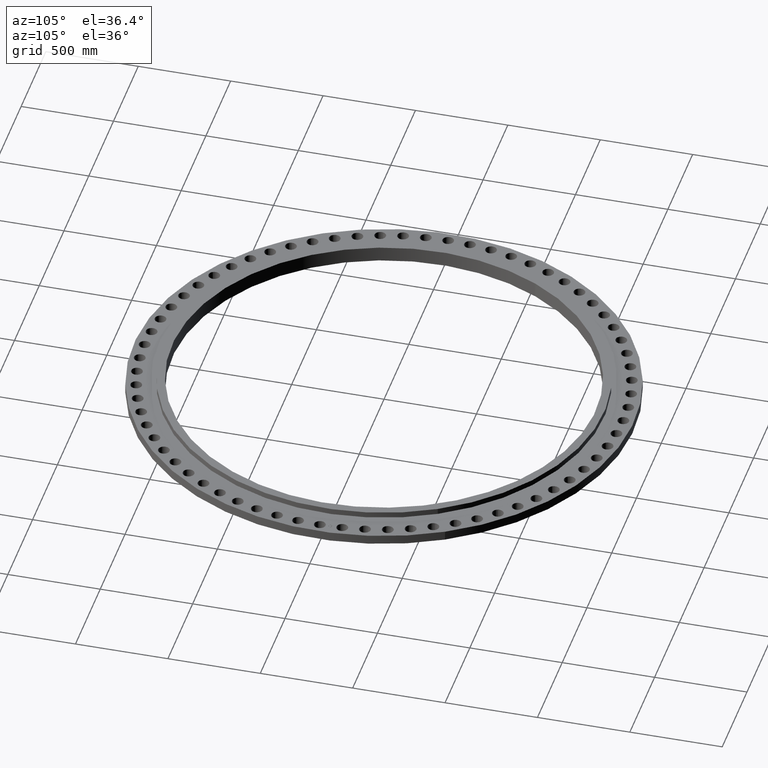
[diagram: clean part render]
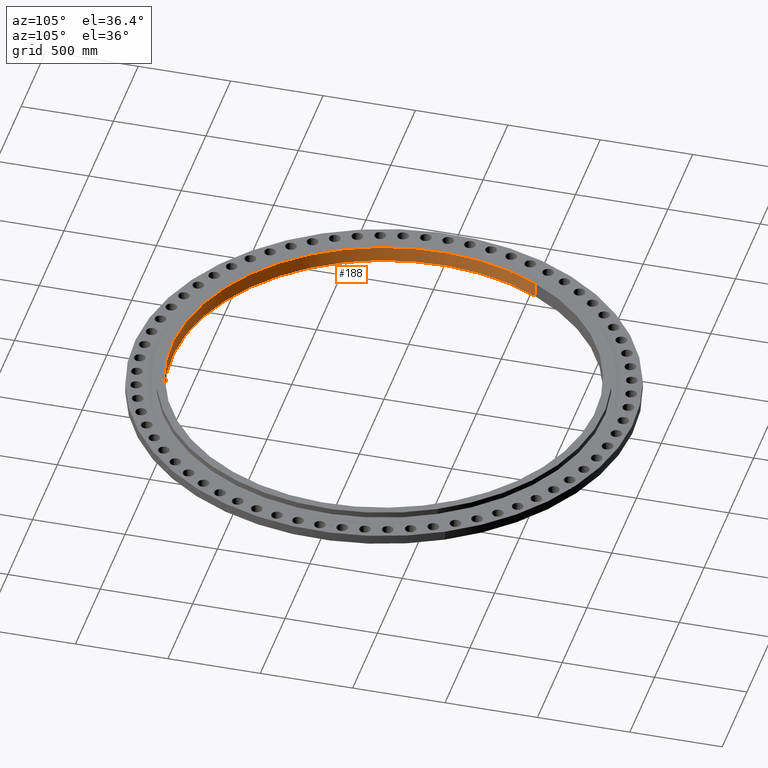
[diagram: same view with one face highlighted and labeled with its STEP entity id]
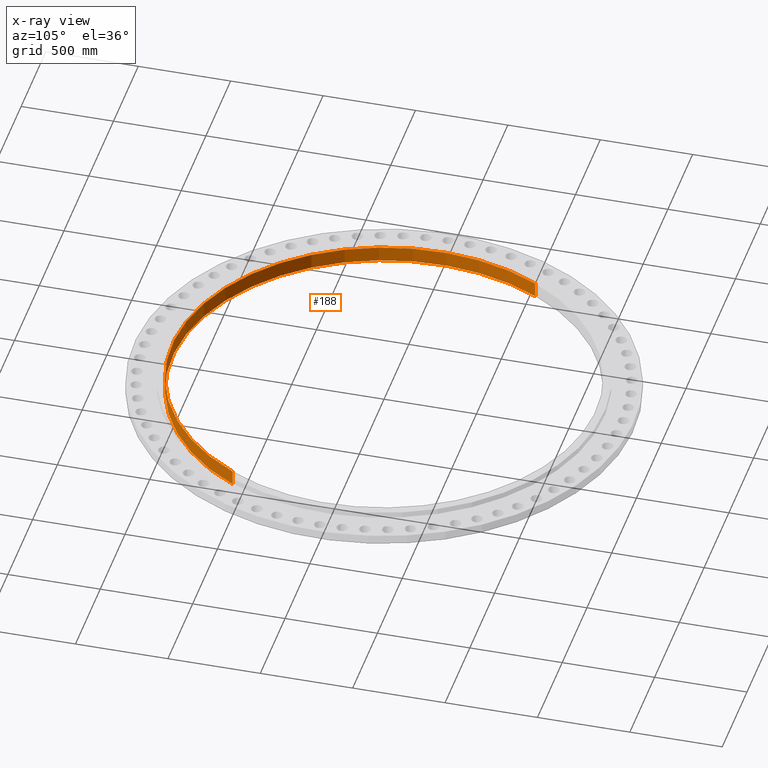
[diagram: x-ray of the same camera — body ghosted, the highlighted face saturated]
A machine part, auxiliary view. The second image highlights one B-rep face of the part: STEP entity #188.
The next image is the same camera in x-ray: the body ghosted, the highlighted face saturated — about 0% of this face is hidden behind the body in this view.
In plain terms, the highlighted cylindrical surface (partial cylindrical patch) has radius 1145.41 mm, axis along (0, -0, -1).
Its self-contained STEP definition (entity closure, byte-faithful):
#152=AXIS2_PLACEMENT_3D('Cylinder Axis2P3D',#149,#150,#151) ;
#165=AXIS2_PLACEMENT_3D('Circle Axis2P3D',#163,#164,$) ;
#179=AXIS2_PLACEMENT_3D('Circle Axis2P3D',#177,#178,$) ;
#149=CARTESIAN_POINT('Axis2P3D Location',(-6.64385432059E-016,-2.09805925913E-016,1.99606299213)) ;
#154=CARTESIAN_POINT('Line Origine',(39.5745856286,-21.6196946634,1.62500000001)) ;
#158=CARTESIAN_POINT('Vertex',(39.5745856286,-21.6196946634,0.)) ;
#160=CARTESIAN_POINT('Vertex',(39.5745856286,-21.6196946634,3.25000000001)) ;
#163=CARTESIAN_POINT('Axis2P3D Location',(-6.64385432059E-016,-2.09805925913E-016,0.)) ;
#167=CARTESIAN_POINT('Vertex',(-39.5745856286,21.6196946634,0.)) ;
#170=CARTESIAN_POINT('Line Origine',(-39.5745856286,21.6196946634,1.62500000001)) ;
#174=CARTESIAN_POINT('Vertex',(-39.5745856286,21.6196946634,3.25000000001)) ;
#177=CARTESIAN_POINT('Axis2P3D Location',(-6.64385432059E-016,-2.09805925913E-016,3.25000000001)) ;
#150=DIRECTION('Axis2P3D Direction',(0.,-0.,-0.0393700787402)) ;
#151=DIRECTION('Axis2P3D XDirection',(-0.0345504945626,0.0188750212049,0.)) ;
#155=DIRECTION('Vector Direction',(0.,0.,-0.0393700787402)) ;
#164=DIRECTION('Axis2P3D Direction',(0.,-0.,-0.0393700787402)) ;
#171=DIRECTION('Vector Direction',(0.,0.,-0.0393700787402)) ;
#178=DIRECTION('Axis2P3D Direction',(0.,-0.,-0.0393700787402)) ;
#156=VECTOR('Line Direction',#155,0.0393700787402) ;
#172=VECTOR('Line Direction',#171,0.0393700787402) ;
#183=ORIENTED_EDGE('',*,*,#162,.F.) ;
#184=ORIENTED_EDGE('',*,*,#169,.F.) ;
#185=ORIENTED_EDGE('',*,*,#176,.T.) ;
#186=ORIENTED_EDGE('',*,*,#181,.T.) ;
#188=ADVANCED_FACE('PartBody',(#187),#153,.F.) ;
#166=CIRCLE('generated circle',#165,45.0950000002) ;
#180=CIRCLE('generated circle',#179,45.0950000002) ;
#153=CYLINDRICAL_SURFACE('generated cylinder',#152,45.0950000002) ;
#162=EDGE_CURVE('',#159,#161,#157,.F.) ;
#169=EDGE_CURVE('',#168,#159,#166,.F.) ;
#176=EDGE_CURVE('',#168,#175,#173,.F.) ;
#181=EDGE_CURVE('',#175,#161,#180,.F.) ;
#182=EDGE_LOOP('',(#183,#184,#185,#186)) ;
#187=FACE_OUTER_BOUND('',#182,.T.) ;
#157=LINE('Line',#154,#156) ;
#173=LINE('Line',#170,#172) ;
#159=VERTEX_POINT('',#158) ;
#161=VERTEX_POINT('',#160) ;
#168=VERTEX_POINT('',#167) ;
#175=VERTEX_POINT('',#174) ;